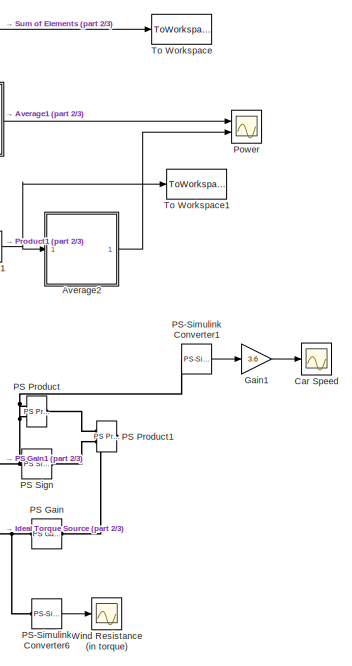
[diagram: root canvas - part 1/3, right side, full height]
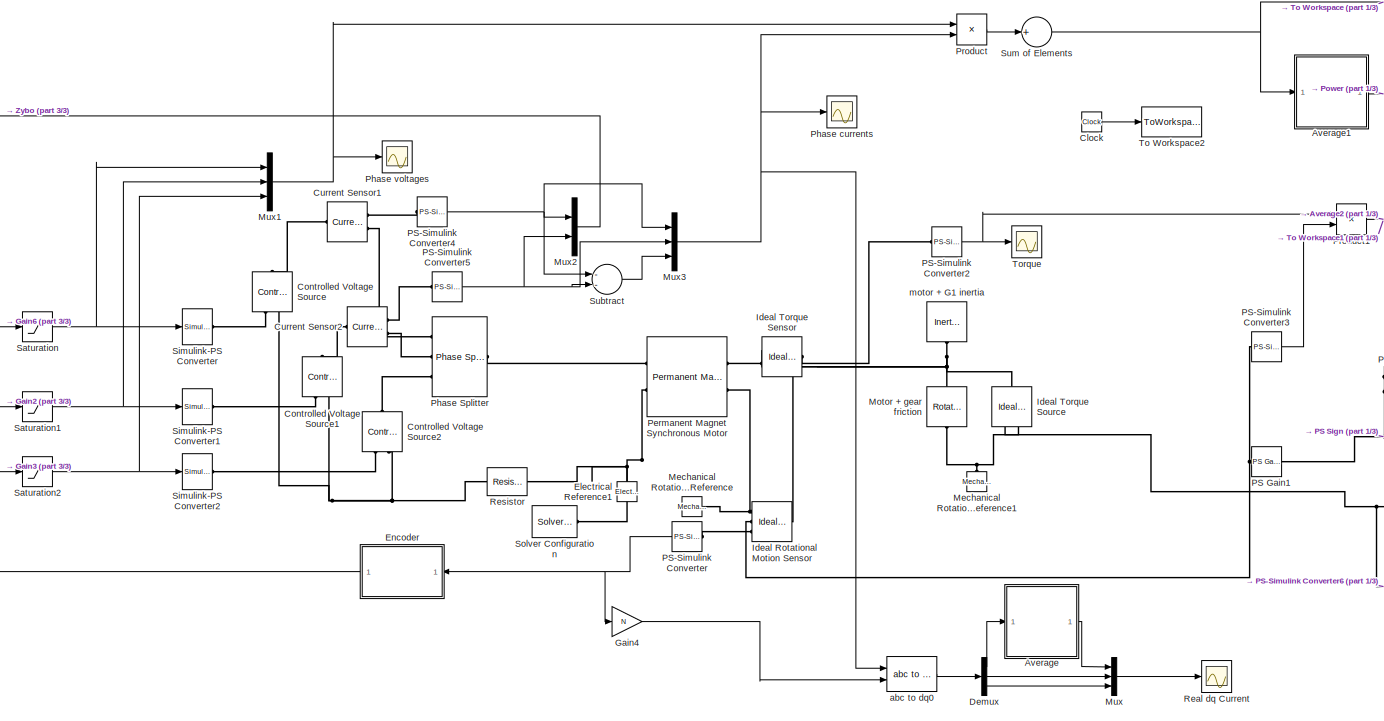
[diagram: root canvas - part 2/3, center side, full height]
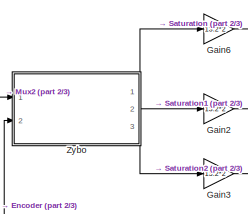
[diagram: root canvas - part 3/3, middle left region]
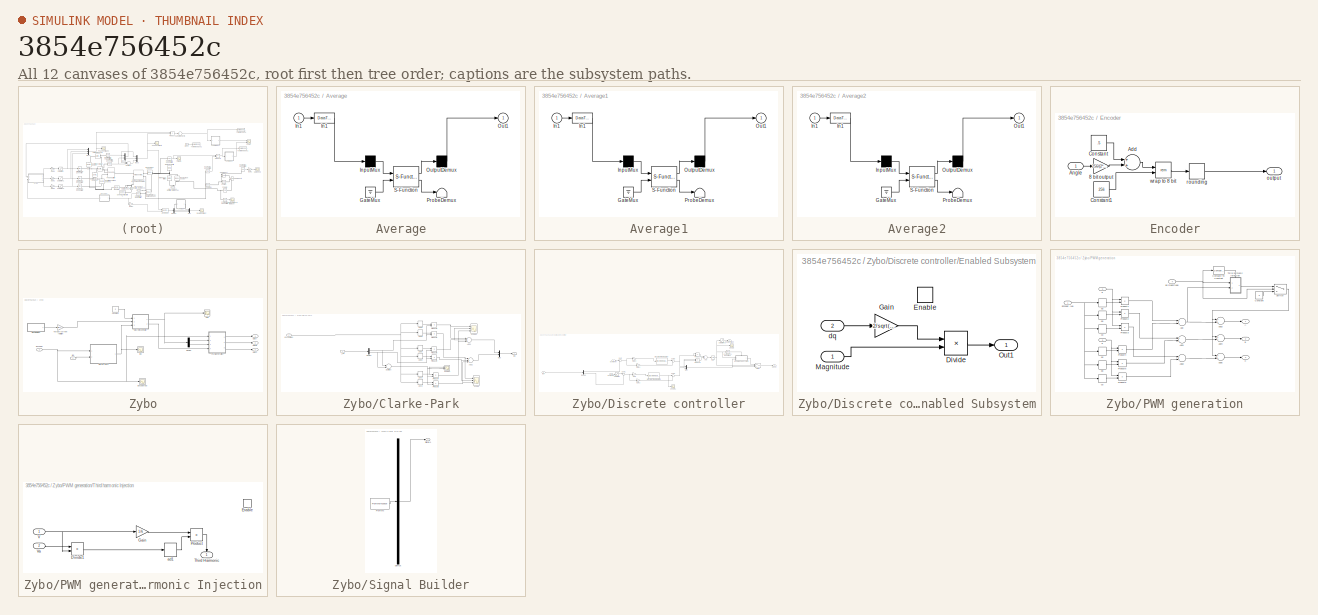
[diagram: thumbnail index - all 12 canvases of the model, root first then tree order]
MODEL slx_3854e756452c
KIND model
CONFIG AbsTol = auto
CONFIG FixedStep = 1
CONFIG MaxStep = auto
CONFIG MinStep = auto
CONFIG RelTol = 1e-2
CONFIG SampleTimeConstraint = Unconstrained
CONFIG Solver = VariableStepAuto
CONFIG SolverMode = Auto
CONFIG SolverName = VariableStepAuto
CONFIG StartTime = 0.0
CONFIG StopTime = 6
BLOCK [SubSystem] Average
  CopyFcn = plecs('sl', 203);
  DeleteFcn = plecs('sl', 205);
  DestroyFcn = plecs('sl', 207);
  ErrorFcn = plerrorfcn
  InitFcn = plecs('sl', 214);
  LoadFcn = plecs('sl', 200);
  NameChangeFcn = plecs('sl', 210);
  OpenFcn = plecs('sl', 202);
  Ports = [1, 1]
  PostSaveFcn = plecs('sl', 201);
  PreCopyFcn = plecs('sl', 216);
  PreSaveFcn = plecs('sl', 211);
  RequestExecContextInheritance = off
  StartFcn = plecs('sl', 208);
  StopFcn = plecs('sl', 209);
  UndoDeleteFcn = plecs('sl', 206);
  Variant = off
BLOCK [Ground] Average/ GateMux 
BLOCK [DataTypeConversion] Average/ In1 
BLOCK [Mux] Average/ InputMux 
  Inputs = [ 1 ]
  Ports = [1, 1]
BLOCK [Demux] Average/ OutputDemux 
  Outputs = [ 1 ]
  Ports = [1, 1]
BLOCK [Terminator] Average/ ProbeDemux 
BLOCK [S-Function] Average/ S-Function 
  EnableBusSupport = off
  FunctionName = plecs
  Ports = [2, 2]
  SFunctionDeploymentMode = off
BLOCK [Inport] Average/In1
  IconDisplay = Port number
  PortDimensions = 1
BLOCK [Outport] Average/Out1
  IconDisplay = Port number
  PortDimensions = 1
BLOCK [SubSystem] Average1
  CopyFcn = plecs('sl', 203);
  DeleteFcn = plecs('sl', 205);
  DestroyFcn = plecs('sl', 207);
  ErrorFcn = plerrorfcn
  InitFcn = plecs('sl', 214);
  LoadFcn = plecs('sl', 200);
  NameChangeFcn = plecs('sl', 210);
  OpenFcn = plecs('sl', 202);
  Ports = [1, 1]
  PostSaveFcn = plecs('sl', 201);
  PreCopyFcn = plecs('sl', 216);
  PreSaveFcn = plecs('sl', 211);
  RequestExecContextInheritance = off
  StartFcn = plecs('sl', 208);
  StopFcn = plecs('sl', 209);
  UndoDeleteFcn = plecs('sl', 206);
  Variant = off
BLOCK [Ground] Average1/ GateMux 
BLOCK [DataTypeConversion] Average1/ In1 
BLOCK [Mux] Average1/ InputMux 
  Inputs = [ 1 ]
  Ports = [1, 1]
BLOCK [Demux] Average1/ OutputDemux 
  Outputs = [ 1 ]
  Ports = [1, 1]
BLOCK [Terminator] Average1/ ProbeDemux 
BLOCK [S-Function] Average1/ S-Function 
  EnableBusSupport = off
  FunctionName = plecs
  Ports = [2, 2]
  SFunctionDeploymentMode = off
BLOCK [Inport] Average1/In1
  IconDisplay = Port number
  PortDimensions = 1
BLOCK [Outport] Average1/Out1
  IconDisplay = Port number
  PortDimensions = 1
BLOCK [SubSystem] Average2
  CopyFcn = plecs('sl', 203);
  DeleteFcn = plecs('sl', 205);
  DestroyFcn = plecs('sl', 207);
  ErrorFcn = plerrorfcn
  InitFcn = plecs('sl', 214);
  LoadFcn = plecs('sl', 200);
  NameChangeFcn = plecs('sl', 210);
  OpenFcn = plecs('sl', 202);
  Ports = [1, 1]
  PostSaveFcn = plecs('sl', 201);
  PreCopyFcn = plecs('sl', 216);
  PreSaveFcn = plecs('sl', 211);
  RequestExecContextInheritance = off
  StartFcn = plecs('sl', 208);
  StopFcn = plecs('sl', 209);
  UndoDeleteFcn = plecs('sl', 206);
  Variant = off
BLOCK [Ground] Average2/ GateMux 
BLOCK [DataTypeConversion] Average2/ In1 
BLOCK [Mux] Average2/ InputMux 
  Inputs = [ 1 ]
  Ports = [1, 1]
BLOCK [Demux] Average2/ OutputDemux 
  Outputs = [ 1 ]
  Ports = [1, 1]
BLOCK [Terminator] Average2/ ProbeDemux 
BLOCK [S-Function] Average2/ S-Function 
  EnableBusSupport = off
  FunctionName = plecs
  Ports = [2, 2]
  SFunctionDeploymentMode = off
BLOCK [Inport] Average2/In1
  IconDisplay = Port number
  PortDimensions = 1
BLOCK [Outport] Average2/Out1
  IconDisplay = Port number
  PortDimensions = 1
BLOCK [Scope] Car Speed
  Ports = [1]
  ScopeSpecificationString = Simulink.scopes.TimeScopeBlockCfg('CurrentConfiguration', extmgr.ConfigurationSet(extmgr.Configuration('Core','General UI',true),extmgr.Configuration('Core','Source UI',true),extmgr.Configuration('Sources','WiredSimulink',true),extmgr.Configuration('Visuals','Time Domain',true,'SerializedDisplays',{struct('MinYLimReal','-6.21447','MaxYLimReal','55.93027','YLabelReal','','MinYLimMag','0.00000','Max...<+1404ch>
BLOCK [Clock] Clock
BLOCK [Reference] Controlled Voltage Source  REF=fl_lib/Electrical/Electrical Sources/Controlled Voltage
Source
  Ports = [0, 0, 0, 0, 0, 1, 2]
  SourceBlock = fl_lib/Electrical/Electrical Sources/Controlled Voltage\nSource
  SourceType = Controlled Voltage\nSource
BLOCK [Reference] Controlled Voltage Source1  REF=fl_lib/Electrical/Electrical Sources/Controlled Voltage
Source
  Ports = [0, 0, 0, 0, 0, 1, 2]
  SourceBlock = fl_lib/Electrical/Electrical Sources/Controlled Voltage\nSource
  SourceType = Controlled Voltage\nSource
BLOCK [Reference] Controlled Voltage Source2  REF=fl_lib/Electrical/Electrical Sources/Controlled Voltage
Source
  Ports = [0, 0, 0, 0, 0, 1, 2]
  SourceBlock = fl_lib/Electrical/Electrical Sources/Controlled Voltage\nSource
  SourceType = Controlled Voltage\nSource
BLOCK [Reference] Current Sensor1  REF=fl_lib/Electrical/Electrical Sensors/Current Sensor
  Ports = [0, 0, 0, 0, 0, 1, 2]
  SourceBlock = fl_lib/Electrical/Electrical Sensors/Current Sensor
  SourceType = Current Sensor
BLOCK [Reference] Current Sensor2  REF=fl_lib/Electrical/Electrical Sensors/Current Sensor
  Ports = [0, 0, 0, 0, 0, 1, 2]
  SourceBlock = fl_lib/Electrical/Electrical Sensors/Current Sensor
  SourceType = Current Sensor
BLOCK [Demux] Demux
  DisplayOption = bar
  Outputs = 3
  Ports = [1, 3]
BLOCK [Reference] Electrical Reference1  REF=fl_lib/Electrical/Electrical Elements/Electrical Reference
  Ports = [0, 0, 0, 0, 0, 1]
  SourceBlock = fl_lib/Electrical/Electrical Elements/Electrical Reference
  SourceType = Electrical Reference
BLOCK [SubSystem] Encoder
  Ports = [1, 1]
  RequestExecContextInheritance = off
  Variant = off
BLOCK [Gain] Encoder/8 bit output
  Gain = 256/(2*pi)
  OutDataTypeStr = Inherit: Inherit via internal rule
  ParamDataTypeStr = Inherit: Inherit via internal rule
  SaturateOnIntegerOverflow = off
BLOCK [Sum] Encoder/Add
  InputSameDT = off
  OutDataTypeStr = Inherit: Inherit via internal rule
  Ports = [2, 1]
  SaturateOnIntegerOverflow = off
BLOCK [Inport] Encoder/Angle
  IconDisplay = Port number
BLOCK [Constant] Encoder/Constant
  Value = .5
BLOCK [Constant] Encoder/Constant1
  Value = 256
BLOCK [Outport] Encoder/output
  IconDisplay = Port number
BLOCK [Rounding] Encoder/rounding
BLOCK [Math] Encoder/wrap to 8 bit
  Operator = rem
  Ports = [2, 1]
BLOCK [Gain] Gain1
  Gain = 3.6
  OutDataTypeStr = Inherit: Inherit via internal rule
  ParamDataTypeStr = Inherit: Inherit via internal rule
  SaturateOnIntegerOverflow = off
BLOCK [Gain] Gain2
  Gain = 13.2*2
  OutDataTypeStr = Inherit: Inherit via internal rule
  ParamDataTypeStr = Inherit: Inherit via internal rule
  SaturateOnIntegerOverflow = off
BLOCK [Gain] Gain3
  Gain = 13.2*2
  OutDataTypeStr = Inherit: Inherit via internal rule
  ParamDataTypeStr = Inherit: Inherit via internal rule
  SaturateOnIntegerOverflow = off
BLOCK [Gain] Gain4
  Gain = N
  OutDataTypeStr = Inherit: Inherit via internal rule
  ParamDataTypeStr = Inherit: Inherit via internal rule
  SaturateOnIntegerOverflow = off
BLOCK [Gain] Gain6
  Gain = 13.2*2
  OutDataTypeStr = Inherit: Inherit via internal rule
  ParamDataTypeStr = Inherit: Inherit via internal rule
  SaturateOnIntegerOverflow = off
BLOCK [Reference] Ideal Rotational Motion Sensor  REF=fl_lib/Mechanical/Mechanical Sensors/Ideal Rotational
Motion Sensor
  Ports = [0, 0, 0, 0, 0, 1, 3]
  SourceBlock = fl_lib/Mechanical/Mechanical Sensors/Ideal Rotational\nMotion Sensor
  SourceType = Ideal Rotational\nMotion Sensor
BLOCK [Reference] Ideal Torque Sensor  REF=fl_lib/Mechanical/Mechanical Sensors/Ideal Torque Sensor
  Ports = [0, 0, 0, 0, 0, 1, 2]
  SourceBlock = fl_lib/Mechanical/Mechanical Sensors/Ideal Torque Sensor
  SourceType = Ideal Torque Sensor
BLOCK [Reference] Ideal Torque Source  REF=fl_lib/Mechanical/Mechanical Sources/Ideal Torque Source
  Ports = [0, 0, 0, 0, 0, 1, 2]
  SourceBlock = fl_lib/Mechanical/Mechanical Sources/Ideal Torque Source
  SourceType = Ideal Torque Source
BLOCK [Reference] Mechanical Rotational Reference  REF=fl_lib/Mechanical/Rotational Elements/Mechanical
Rotational Reference
  Ports = [0, 0, 0, 0, 0, 1]
  SourceBlock = fl_lib/Mechanical/Rotational Elements/Mechanical\nRotational Reference
  SourceType = Mechanical\nRotational Reference
BLOCK [Reference] Mechanical Rotational Reference1  REF=fl_lib/Mechanical/Rotational Elements/Mechanical
Rotational Reference
  Ports = [0, 0, 0, 0, 0, 1]
  SourceBlock = fl_lib/Mechanical/Rotational Elements/Mechanical\nRotational Reference
  SourceType = Mechanical\nRotational Reference
BLOCK [Reference] Motor + gear friction  REF=fl_lib/Mechanical/Rotational Elements/Rotational Friction
  Ports = [0, 0, 0, 0, 0, 1, 1]
  SourceBlock = fl_lib/Mechanical/Rotational Elements/Rotational Friction
  SourceType = Rotational Friction
BLOCK [Mux] Mux
  DisplayOption = bar
  Inputs = 3
  Ports = [3, 1]
BLOCK [Mux] Mux1
  DisplayOption = bar
  Inputs = 3
  Ports = [3, 1]
BLOCK [Mux] Mux2
  DisplayOption = bar
  Inputs = 2
  Ports = [2, 1]
BLOCK [Mux] Mux3
  DisplayOption = bar
  Inputs = 3
  Ports = [3, 1]
BLOCK [Reference] PS Gain  REF=fl_lib/Physical Signals/Functions/PS Gain
  Ports = [0, 0, 0, 0, 0, 1, 1]
  SourceBlock = fl_lib/Physical Signals/Functions/PS Gain
  SourceType = PS Gain
BLOCK [Reference] PS Gain1  REF=fl_lib/Physical Signals/Functions/PS Gain
  Ports = [0, 0, 0, 0, 0, 1, 1]
  SourceBlock = fl_lib/Physical Signals/Functions/PS Gain
  SourceType = PS Gain
BLOCK [Reference] PS Product  REF=fl_lib/Physical Signals/Functions/PS Product
  Ports = [0, 0, 0, 0, 0, 2, 1]
  SourceBlock = fl_lib/Physical Signals/Functions/PS Product
  SourceType = PS Product
BLOCK [Reference] PS Product1  REF=fl_lib/Physical Signals/Functions/PS Product
  Ports = [0, 0, 0, 0, 0, 2, 1]
  SourceBlock = fl_lib/Physical Signals/Functions/PS Product
  SourceType = PS Product
BLOCK [Reference] PS Sign  REF=fl_lib/Physical Signals/Nonlinear Operators/PS Sign
  Ports = [0, 0, 0, 0, 0, 1, 1]
  SourceBlock = fl_lib/Physical Signals/Nonlinear Operators/PS Sign
  SourceType = PS Sign
BLOCK [Reference] PS-Simulink Converter  REF=nesl_utility/PS-Simulink
Converter
  Ports = [0, 1, 0, 0, 0, 1]
  SourceBlock = nesl_utility/PS-Simulink\nConverter
  SourceType = PS-Simulink\nConverter
BLOCK [Reference] PS-Simulink Converter1  REF=nesl_utility/PS-Simulink
Converter
  Ports = [0, 1, 0, 0, 0, 1]
  SourceBlock = nesl_utility/PS-Simulink\nConverter
  SourceType = PS-Simulink\nConverter
BLOCK [Reference] PS-Simulink Converter2  REF=nesl_utility/PS-Simulink
Converter
  Ports = [0, 1, 0, 0, 0, 1]
  SourceBlock = nesl_utility/PS-Simulink\nConverter
  SourceType = PS-Simulink\nConverter
BLOCK [Reference] PS-Simulink Converter3  REF=nesl_utility/PS-Simulink
Converter
  Ports = [0, 1, 0, 0, 0, 1]
  SourceBlock = nesl_utility/PS-Simulink\nConverter
  SourceType = PS-Simulink\nConverter
BLOCK [Reference] PS-Simulink Converter4  REF=nesl_utility/PS-Simulink
Converter
  Ports = [0, 1, 0, 0, 0, 1]
  SourceBlock = nesl_utility/PS-Simulink\nConverter
  SourceType = PS-Simulink\nConverter
BLOCK [Reference] PS-Simulink Converter5  REF=nesl_utility/PS-Simulink
Converter
  Ports = [0, 1, 0, 0, 0, 1]
  SourceBlock = nesl_utility/PS-Simulink\nConverter
  SourceType = PS-Simulink\nConverter
BLOCK [Reference] PS-Simulink Converter6  REF=nesl_utility/PS-Simulink
Converter
  Ports = [0, 1, 0, 0, 0, 1]
  SourceBlock = nesl_utility/PS-Simulink\nConverter
  SourceType = PS-Simulink\nConverter
BLOCK [Reference] Permanent Magnet Synchronous Motor  REF=pe_lib/Machines/Permanent Magnet
Rotor/Permanent Magnet
Synchronous Motor
  Ports = [0, 0, 0, 0, 0, 2, 2]
  SourceBlock = pe_lib/Machines/Permanent Magnet\nRotor/Permanent Magnet\nSynchronous Motor
  SourceType = Permanent Magnet\nSynchronous Motor
BLOCK [Reference] Phase Splitter  REF=pe_lib/Connections/Phase Splitter
  Ports = [0, 0, 0, 0, 0, 1, 3]
  SourceBlock = pe_lib/Connections/Phase Splitter
  SourceType = Phase Splitter
BLOCK [Scope] Phase currents
  Ports = [1]
  ScopeSpecificationString = Simulink.scopes.TimeScopeBlockCfg('CurrentConfiguration', extmgr.ConfigurationSet(extmgr.Configuration('Core','General UI',true),extmgr.Configuration('Core','Source UI',true),extmgr.Configuration('Sources','WiredSimulink',true,'DataLoggingVariableName','ScopeData2'),extmgr.Configuration('Visuals','Time Domain',true,'SerializedDisplays',{struct('MinYLimReal','-327.30292','MaxYLimReal','313.75893','...<+1506ch>
BLOCK [Scope] Phase voltages
  Ports = [1]
  ScopeSpecificationString = Simulink.scopes.TimeScopeBlockCfg('CurrentConfiguration', extmgr.ConfigurationSet(extmgr.Configuration('Core','General UI',true),extmgr.Configuration('Core','Source UI',true),extmgr.Configuration('Sources','WiredSimulink',true,'DataLoggingVariableName','ScopeData1'),extmgr.Configuration('Visuals','Time Domain',true,'SerializedDisplays',{struct('MinYLimReal','-12.34939','MaxYLimReal','12.34144','YL...<+1503ch>
BLOCK [Scope] Power
  NumInputPorts = 2
  Ports = [2]
  ScopeSpecificationString = Simulink.scopes.TimeScopeBlockCfg('CurrentConfiguration', extmgr.ConfigurationSet(extmgr.Configuration('Core','General UI',true),extmgr.Configuration('Core','Source UI',true),extmgr.Configuration('Sources','WiredSimulink',true,'DataLoggingVariableName','ScopeData3'),extmgr.Configuration('Visuals','Time Domain',true,'SerializedDisplays',{struct('MinYLimReal','-1460.1442','MaxYLimReal','12844.61844'...<+1548ch>
BLOCK [Product] Product
  InputSameDT = off
  OutDataTypeStr = Inherit: Inherit via internal rule
  Ports = [2, 1]
  RndMeth = Floor
  SaturateOnIntegerOverflow = off
BLOCK [Product] Product1
  InputSameDT = off
  OutDataTypeStr = Inherit: Inherit via internal rule
  Ports = [2, 1]
  RndMeth = Floor
  SaturateOnIntegerOverflow = off
BLOCK [Scope] Real dq Current
  Ports = [1]
  ScopeSpecificationString = Simulink.scopes.TimeScopeBlockCfg('CurrentConfiguration', extmgr.ConfigurationSet(extmgr.Configuration('Core','General UI',true),extmgr.Configuration('Core','Source UI',true),extmgr.Configuration('Sources','WiredSimulink',true,'DataLoggingVariableName','ScopeData1'),extmgr.Configuration('Visuals','Time Domain',true,'SerializedDisplays',{struct('MinYLimReal','-48.15047','MaxYLimReal','342.67954','Y...<+1471ch>
BLOCK [Reference] Resistor  REF=fl_lib/Electrical/Electrical Elements/Resistor
  Ports = [0, 0, 0, 0, 0, 1, 1]
  SourceBlock = fl_lib/Electrical/Electrical Elements/Resistor
  SourceType = Resistor
BLOCK [Saturate] Saturation
  InputPortMap = u0
  LowerLimit = -13.2*2
  Ports = [1, 1]
  UpperLimit = 13.2*2
BLOCK [Saturate] Saturation1
  InputPortMap = u0
  LowerLimit = -13.2*2
  Ports = [1, 1]
  UpperLimit = 13.2*2
BLOCK [Saturate] Saturation2
  InputPortMap = u0
  LowerLimit = -13.2*2
  Ports = [1, 1]
  UpperLimit = 13.2*2
BLOCK [Reference] Simulink-PS Converter  REF=nesl_utility/Simulink-PS
Converter
  Ports = [1, 0, 0, 0, 0, 0, 1]
  SourceBlock = nesl_utility/Simulink-PS\nConverter
  SourceType = Simulink-PS\nConverter
BLOCK [Reference] Simulink-PS Converter1  REF=nesl_utility/Simulink-PS
Converter
  Ports = [1, 0, 0, 0, 0, 0, 1]
  SourceBlock = nesl_utility/Simulink-PS\nConverter
  SourceType = Simulink-PS\nConverter
BLOCK [Reference] Simulink-PS Converter2  REF=nesl_utility/Simulink-PS
Converter
  Ports = [1, 0, 0, 0, 0, 0, 1]
  SourceBlock = nesl_utility/Simulink-PS\nConverter
  SourceType = Simulink-PS\nConverter
BLOCK [Reference] Solver Configuration  REF=nesl_utility/Solver
Configuration
  Ports = [0, 0, 0, 0, 0, 0, 1]
  SourceBlock = nesl_utility/Solver\nConfiguration
  SourceType = Solver\nConfiguration
BLOCK [Sum] Subtract
  InputSameDT = off
  Inputs = --
  OutDataTypeStr = Inherit: Inherit via internal rule
  Ports = [2, 1]
  SaturateOnIntegerOverflow = off
BLOCK [Sum] Sum of Elements
  InputSameDT = off
  Inputs = +
  OutDataTypeStr = Inherit: Inherit via internal rule
  Ports = [1, 1]
  SaturateOnIntegerOverflow = off
BLOCK [ToWorkspace] To Workspace
  FixptAsFi = on
  MaxDataPoints = inf
  Ports = [1]
  SampleTime = -1
  Save2DSignal = 2-D array (concatenate along first dimension)
  VariableName = compensated_power_e
BLOCK [ToWorkspace] To Workspace1
  FixptAsFi = on
  MaxDataPoints = inf
  Ports = [1]
  SampleTime = -1
  Save2DSignal = 2-D array (concatenate along first dimension)
  VariableName = compensated_power_m
BLOCK [ToWorkspace] To Workspace2
  FixptAsFi = on
  MaxDataPoints = inf
  Ports = [1]
  SampleTime = -1
  Save2DSignal = 2-D array (concatenate along first dimension)
  VariableName = compensated_time
BLOCK [Scope] Torque
  Ports = [1]
  ScopeSpecificationString = Simulink.scopes.TimeScopeBlockCfg('CurrentConfiguration', extmgr.ConfigurationSet(extmgr.Configuration('Core','General UI',true),extmgr.Configuration('Core','Source UI',true),extmgr.Configuration('Sources','WiredSimulink',true,'DataLoggingVariableName','ScopeData4'),extmgr.Configuration('Visuals','Time Domain',true,'SerializedDisplays',{struct('MinYLimReal','-4.30118','MaxYLimReal','37.5571','YLab...<+1496ch>
BLOCK [Scope] Wind Resistance (in torque)
  Ports = [1]
  ScopeSpecificationString = Simulink.scopes.TimeScopeBlockCfg('CurrentConfiguration', extmgr.ConfigurationSet(extmgr.Configuration('Core','General UI',true),extmgr.Configuration('Core','Source UI',true),extmgr.Configuration('Sources','WiredSimulink',true,'DataLoggingVariableName','ScopeData4'),extmgr.Configuration('Visuals','Time Domain',true,'SerializedDisplays',{struct('MinYLimReal','-2.98683','MaxYLimReal','0.33187','YLab...<+1502ch>
BLOCK [SubSystem] Zybo
  Ports = [2, 3]
  RequestExecContextInheritance = off
  Variant = off
BLOCK [SubSystem] Zybo/Clarke-Park
  Ports = [2, 1]
  RequestExecContextInheritance = off
  SystemSampleTime = T
  Variant = off
BLOCK [Lookup_n-D] Zybo/Clarke-Park/2//3ad
  BreakpointsForDimension1 = n1
  InternalRulePriority = Speed
  InterpMethod = Nearest
  NumberOfTableDimensions = 1
  Ports = [1, 1]
  RndMeth = Simplest
  Table = ad*2/3
BLOCK [Lookup_n-D] Zybo/Clarke-Park/2//3aq
  BreakpointsForDimension1 = n1
  InternalRulePriority = Speed
  InterpMethod = Nearest
  NumberOfTableDimensions = 1
  Ports = [1, 1]
  RndMeth = Simplest
  Table = aq*2/3
BLOCK [Lookup_n-D] Zybo/Clarke-Park/2//3bd
  BreakpointsForDimension1 = n1
  InternalRulePriority = Speed
  InterpMethod = Nearest
  NumberOfTableDimensions = 1
  Ports = [1, 1]
  RndMeth = Simplest
  Table = bd*2/3
BLOCK [Lookup_n-D] Zybo/Clarke-Park/2//3bq
  BreakpointsForDimension1 = n1
  InternalRulePriority = Speed
  InterpMethod = Nearest
  NumberOfTableDimensions = 1
  Ports = [1, 1]
  RndMeth = Simplest
  Table = bq*2/3
BLOCK [Lookup_n-D] Zybo/Clarke-Park/2//3cd
  BreakpointsForDimension1 = n1
  InternalRulePriority = Speed
  InterpMethod = Nearest
  NumberOfTableDimensions = 1
  Ports = [1, 1]
  RndMeth = Simplest
  Table = cd*2/3
BLOCK [Lookup_n-D] Zybo/Clarke-Park/2//3cq
  BreakpointsForDimension1 = n1
  InternalRulePriority = Speed
  InterpMethod = Nearest
  NumberOfTableDimensions = 1
  Ports = [1, 1]
  RndMeth = Simplest
  Table = cq*2/3
BLOCK [Sum] Zybo/Clarke-Park/Add1
  InputSameDT = off
  Inputs = +++
  OutDataTypeStr = Inherit: Inherit via internal rule
  Ports = [3, 1]
  SaturateOnIntegerOverflow = off
BLOCK [Sum] Zybo/Clarke-Park/Add2
  InputSameDT = off
  Inputs = +++
  OutDataTypeStr = Inherit: Inherit via internal rule
  Ports = [3, 1]
  SaturateOnIntegerOverflow = off
BLOCK [Demux] Zybo/Clarke-Park/Demux
  DisplayOption = bar
  Outputs = 2
  Ports = [1, 2]
BLOCK [Inport] Zybo/Clarke-Park/I_ab
  IconDisplay = Port number
  Port = 2
BLOCK [Outport] Zybo/Clarke-Park/Idq
  IconDisplay = Port number
BLOCK [Mux] Zybo/Clarke-Park/Mux
  DisplayOption = bar
  Inputs = 2
  Ports = [2, 1]
BLOCK [Product] Zybo/Clarke-Park/Product2
  InputSameDT = off
  OutDataTypeStr = Inherit: Inherit via internal rule
  Ports = [2, 1]
  RndMeth = Floor
  SaturateOnIntegerOverflow = off
BLOCK [Product] Zybo/Clarke-Park/Product3
  InputSameDT = off
  OutDataTypeStr = Inherit: Inherit via internal rule
  Ports = [2, 1]
  RndMeth = Floor
  SaturateOnIntegerOverflow = off
BLOCK [Product] Zybo/Clarke-Park/Product4
  InputSameDT = off
  OutDataTypeStr = Inherit: Inherit via internal rule
  Ports = [2, 1]
  RndMeth = Floor
  SaturateOnIntegerOverflow = off
BLOCK [Product] Zybo/Clarke-Park/Product5
  InputSameDT = off
  OutDataTypeStr = Inherit: Inherit via internal rule
  Ports = [2, 1]
  RndMeth = Floor
  SaturateOnIntegerOverflow = off
BLOCK [Product] Zybo/Clarke-Park/Product6
  InputSameDT = off
  OutDataTypeStr = Inherit: Inherit via internal rule
  Ports = [2, 1]
  RndMeth = Floor
  SaturateOnIntegerOverflow = off
BLOCK [Product] Zybo/Clarke-Park/Product7
  InputSameDT = off
  OutDataTypeStr = Inherit: Inherit via internal rule
  Ports = [2, 1]
  RndMeth = Floor
  SaturateOnIntegerOverflow = off
BLOCK [Scope] Zybo/Clarke-Park/Scope
  NumInputPorts = 3
  Ports = [3]
  ScopeSpecificationString = Simulink.scopes.TimeScopeBlockCfg('CurrentConfiguration', extmgr.ConfigurationSet(extmgr.Configuration('Core','General UI',true),extmgr.Configuration('Core','Source UI',true),extmgr.Configuration('Sources','WiredSimulink',true,'DataLoggingVariableName','ScopeData3','DataLoggingSaveFormat','Array','DataLoggingDecimation','1'),extmgr.Configuration('Visuals','Time Domain',true,'SerializedDisplays',{s...<+1890ch>
BLOCK [Scope] Zybo/Clarke-Park/Scope1
  NumInputPorts = 2
  Ports = [2]
  ScopeSpecificationString = Simulink.scopes.TimeScopeBlockCfg('CurrentConfiguration', extmgr.ConfigurationSet(extmgr.Configuration('Core','General UI',true),extmgr.Configuration('Core','Source UI',true),extmgr.Configuration('Sources','WiredSimulink',true,'DataLoggingVariableName','ScopeData1'),extmgr.Configuration('Visuals','Time Domain',true,'SerializedDisplays',{struct('MinYLimReal','-0.75291','MaxYLimReal','0.72171','YLab...<+2066ch>
BLOCK [Scope] Zybo/Clarke-Park/Scope2
  NumInputPorts = 3
  Ports = [3]
  ScopeSpecificationString = Simulink.scopes.TimeScopeBlockCfg('CurrentConfiguration', extmgr.ConfigurationSet(extmgr.Configuration('Core','General UI',true),extmgr.Configuration('Core','Source UI',true),extmgr.Configuration('Sources','WiredSimulink',true,'DataLoggingVariableName','ScopeData4','DataLoggingSaveFormat','Array','DataLoggingDecimation','1','DataLoggingDecimateData',true),extmgr.Configuration('Visuals','Time Domai...<+1601ch>
BLOCK [Sum] Zybo/Clarke-Park/Subtract
  InputSameDT = off
  Inputs = --
  OutDataTypeStr = Inherit: Inherit via internal rule
  Ports = [2, 1]
  SaturateOnIntegerOverflow = off
BLOCK [Inport] Zybo/Clarke-Park/encoder(u8)
  IconDisplay = Port number
BLOCK [Constant] Zybo/Constant
  Value = 0
BLOCK [Demux] Zybo/Demux
  DisplayOption = bar
  Outputs = 2
  Ports = [1, 2]
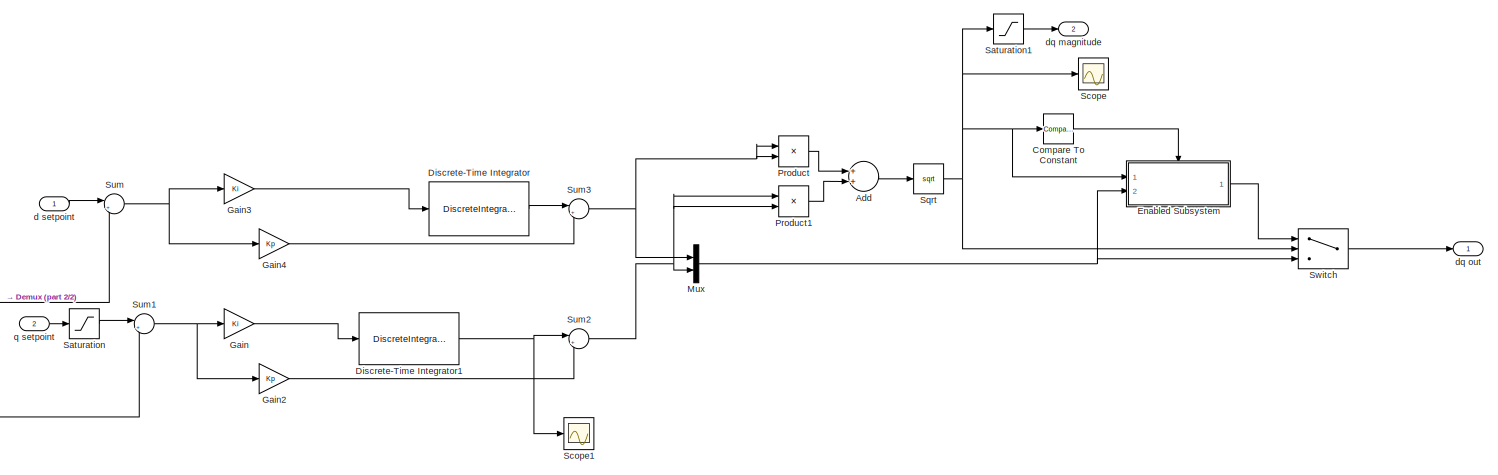
[diagram: Zybo/Discrete controller - part 1/2, center side, full height]
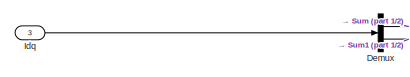
[diagram: Zybo/Discrete controller - part 2/2, middle left region]
BLOCK [SubSystem] Zybo/Discrete controller
  PermitHierarchicalResolution = ExplicitOnly
  Ports = [3, 2]
  RequestExecContextInheritance = off
  SystemSampleTime = T
  TreatAsAtomicUnit = on
  Variant = off
BLOCK [Sum] Zybo/Discrete controller/Add
  InputSameDT = off
  OutDataTypeStr = Inherit: Inherit via internal rule
  Ports = [2, 1]
  SaturateOnIntegerOverflow = off
BLOCK [Reference] Zybo/Discrete controller/Compare To Constant  REF=simulink/Logic and Bit
Operations/Compare
To Constant
  Ports = [1, 1]
  SourceBlock = simulink/Logic and Bit\nOperations/Compare\nTo Constant
  SourceType = Compare To Constant
BLOCK [Demux] Zybo/Discrete controller/Demux
  DisplayOption = bar
  Outputs = 2
  Ports = [1, 2]
BLOCK [DiscreteIntegrator] Zybo/Discrete controller/Discrete-Time Integrator
  ICPrevOutput = DiscIntNeverNeededParam
  ICPrevScaledInput = DiscIntNeverNeededParam
  InitialConditionSetting = State (most efficient)
  IntegratorMethod = Integration: Trapezoidal
  LimitOutput = on
  LowerSaturationLimit = -2/sqrt(3)
  Ports = [1, 1]
  SampleTime = T
  UpperSaturationLimit = 2/sqrt(3)
BLOCK [DiscreteIntegrator] Zybo/Discrete controller/Discrete-Time Integrator1
  ICPrevOutput = DiscIntNeverNeededParam
  ICPrevScaledInput = DiscIntNeverNeededParam
  InitialConditionSetting = State (most efficient)
  IntegratorMethod = Integration: Trapezoidal
  LimitOutput = on
  LowerSaturationLimit = -2/sqrt(3)
  Ports = [1, 1]
  SampleTime = T
  UpperSaturationLimit = 2/sqrt(3)
BLOCK [SubSystem] Zybo/Discrete controller/Enabled Subsystem
  Ports = [2, 1, 1]
  RequestExecContextInheritance = off
  TreatAsAtomicUnit = on
  Variant = off
BLOCK [Product] Zybo/Discrete controller/Enabled Subsystem/Divide
  InputSameDT = off
  Inputs = */
  OutDataTypeStr = Inherit: Inherit via internal rule
  Ports = [2, 1]
  RndMeth = Floor
  SaturateOnIntegerOverflow = off
BLOCK [EnablePort] Zybo/Discrete controller/Enabled Subsystem/Enable
  Ports = []
BLOCK [Gain] Zybo/Discrete controller/Enabled Subsystem/Gain
  Gain = 2/sqrt(3)
  OutDataTypeStr = Inherit: Inherit via internal rule
  ParamDataTypeStr = Inherit: Inherit via internal rule
  SaturateOnIntegerOverflow = off
BLOCK [Inport] Zybo/Discrete controller/Enabled Subsystem/Magnitude
  IconDisplay = Port number
BLOCK [Outport] Zybo/Discrete controller/Enabled Subsystem/Out1
  IconDisplay = Port number
BLOCK [Inport] Zybo/Discrete controller/Enabled Subsystem/dq
  IconDisplay = Port number
  Port = 2
BLOCK [Gain] Zybo/Discrete controller/Gain
  Gain = Ki
  OutDataTypeStr = Inherit: Inherit via internal rule
  ParamDataTypeStr = Inherit: Inherit via internal rule
  SaturateOnIntegerOverflow = off
BLOCK [Gain] Zybo/Discrete controller/Gain2
  Gain = Kp
  OutDataTypeStr = Inherit: Inherit via internal rule
  ParamDataTypeStr = Inherit: Inherit via internal rule
  SaturateOnIntegerOverflow = off
BLOCK [Gain] Zybo/Discrete controller/Gain3
  Gain = Ki
  OutDataTypeStr = Inherit: Inherit via internal rule
  ParamDataTypeStr = Inherit: Inherit via internal rule
  SaturateOnIntegerOverflow = off
BLOCK [Gain] Zybo/Discrete controller/Gain4
  Gain = Kp
  OutDataTypeStr = Inherit: Inherit via internal rule
  ParamDataTypeStr = Inherit: Inherit via internal rule
  SaturateOnIntegerOverflow = off
BLOCK [Inport] Zybo/Discrete controller/Idq
  IconDisplay = Port number
  Port = 3
BLOCK [Mux] Zybo/Discrete controller/Mux
  DisplayOption = bar
  Inputs = 2
  Ports = [2, 1]
BLOCK [Product] Zybo/Discrete controller/Product
  InputSameDT = off
  OutDataTypeStr = Inherit: Inherit via internal rule
  Ports = [2, 1]
  RndMeth = Floor
  SaturateOnIntegerOverflow = off
BLOCK [Product] Zybo/Discrete controller/Product1
  InputSameDT = off
  OutDataTypeStr = Inherit: Inherit via internal rule
  Ports = [2, 1]
  RndMeth = Floor
  SaturateOnIntegerOverflow = off
BLOCK [Saturate] Zybo/Discrete controller/Saturation
  InputPortMap = u0
  Ports = [1, 1]
  UpperLimit = 300
BLOCK [Saturate] Zybo/Discrete controller/Saturation1
  InputPortMap = u0
  Ports = [1, 1]
  UpperLimit = 2/sqrt(3)
BLOCK [Scope] Zybo/Discrete controller/Scope
  Ports = [1]
  ScopeSpecificationString = Simulink.scopes.TimeScopeBlockCfg('CurrentConfiguration', extmgr.ConfigurationSet(extmgr.Configuration('Core','General UI',true),extmgr.Configuration('Core','Source UI',true),extmgr.Configuration('Sources','WiredSimulink',true,'DataLoggingVariableName','ScopeData1'),extmgr.Configuration('Visuals','Time Domain',true,'SerializedDisplays',{struct('MinYLimReal','-0.53285','MaxYLimReal','4.79561','YLab...<+1435ch>
BLOCK [Scope] Zybo/Discrete controller/Scope1
  Ports = [1]
  ScopeSpecificationString = Simulink.scopes.TimeScopeBlockCfg('CurrentConfiguration', extmgr.ConfigurationSet(extmgr.Configuration('Core','General UI',true),extmgr.Configuration('Core','Source UI',true),extmgr.Configuration('Sources','WiredSimulink',true,'DataLoggingVariableName','ScopeData2'),extmgr.Configuration('Visuals','Time Domain',true,'SerializedDisplays',{struct('MinYLimReal','-0.14434','MaxYLimReal','1.29904','YLab...<+1459ch>
BLOCK [Sqrt] Zybo/Discrete controller/Sqrt
BLOCK [Sum] Zybo/Discrete controller/Sum
  IconShape = round
  InputSameDT = off
  Inputs = |+-
  OutDataTypeStr = Inherit: Inherit via internal rule
  Ports = [2, 1]
  SaturateOnIntegerOverflow = off
BLOCK [Sum] Zybo/Discrete controller/Sum1
  IconShape = round
  InputSameDT = off
  Inputs = |+-
  OutDataTypeStr = Inherit: Inherit via internal rule
  Ports = [2, 1]
  SaturateOnIntegerOverflow = off
BLOCK [Sum] Zybo/Discrete controller/Sum2
  IconShape = round
  InputSameDT = off
  Inputs = |++
  OutDataTypeStr = Inherit: Inherit via internal rule
  Ports = [2, 1]
  SaturateOnIntegerOverflow = off
BLOCK [Sum] Zybo/Discrete controller/Sum3
  IconShape = round
  InputSameDT = off
  Inputs = |++
  OutDataTypeStr = Inherit: Inherit via internal rule
  Ports = [2, 1]
  SaturateOnIntegerOverflow = off
BLOCK [Switch] Zybo/Discrete controller/Switch
  Criteria = u2 > Threshold
  InputSameDT = off
  SaturateOnIntegerOverflow = off
  Threshold = 2/sqrt(3)
BLOCK [Inport] Zybo/Discrete controller/d setpoint
  IconDisplay = Port number
BLOCK [Outport] Zybo/Discrete controller/dq magnitude
  IconDisplay = Port number
  Port = 2
BLOCK [Outport] Zybo/Discrete controller/dq out
  IconDisplay = Port number
BLOCK [Inport] Zybo/Discrete controller/q setpoint
  IconDisplay = Port number
  Port = 2
BLOCK [Outport] Zybo/Duty A
  IconDisplay = Port number
BLOCK [Outport] Zybo/Duty B
  IconDisplay = Port number
  Port = 2
BLOCK [Outport] Zybo/Duty C
  IconDisplay = Port number
  Port = 3
BLOCK [Inport] Zybo/Encoder
  IconDisplay = Port number
  Port = 2
BLOCK [Scope] Zybo/Encoder out
  Ports = [1]
  ScopeSpecificationString = Simulink.scopes.TimeScopeBlockCfg('CurrentConfiguration', extmgr.ConfigurationSet(extmgr.Configuration('Core','General UI',true),extmgr.Configuration('Core','Source UI',true),extmgr.Configuration('Sources','WiredSimulink',true,'DataLoggingVariableName','ScopeData1'),extmgr.Configuration('Visuals','Time Domain',true,'SerializedDisplays',{struct('MinYLimReal','-32.00000','MaxYLimReal','288.00000','Y...<+1479ch>
BLOCK [Inport] Zybo/Iab
  IconDisplay = Port number
BLOCK [Scope] Zybo/Idq
  Ports = [1]
  ScopeSpecificationString = Simulink.scopes.TimeScopeBlockCfg('CurrentConfiguration', extmgr.ConfigurationSet(extmgr.Configuration('Core','General UI',true),extmgr.Configuration('Core','Source UI',true),extmgr.Configuration('Sources','WiredSimulink',true,'DataLoggingVariableName','ScopeData1'),extmgr.Configuration('Visuals','Time Domain',true,'SerializedDisplays',{struct('MinYLimReal','-93.65803','MaxYLimReal','351.26576','Y...<+1501ch>
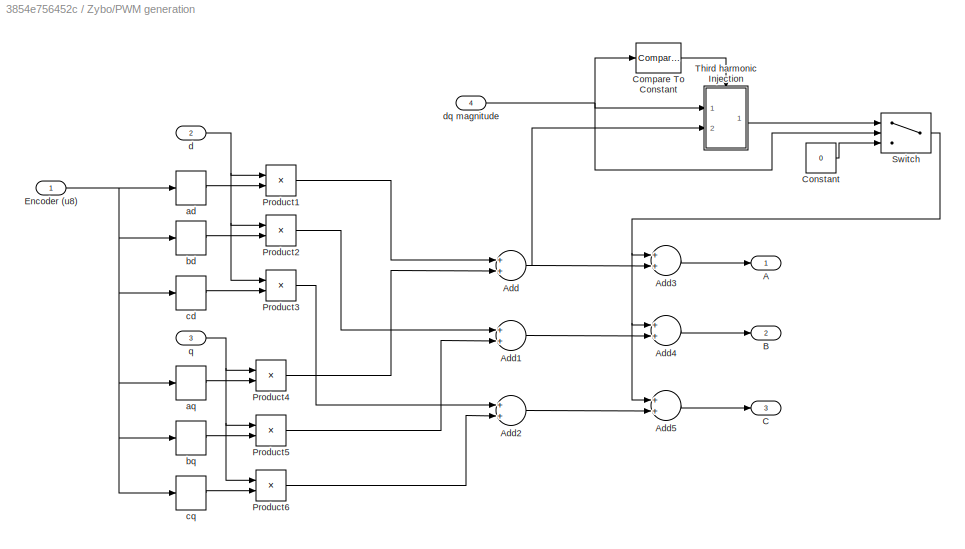
BLOCK [SubSystem] Zybo/PWM generation
  Ports = [4, 3]
  RequestExecContextInheritance = off
  Variant = off
BLOCK [Outport] Zybo/PWM generation/A
  IconDisplay = Port number
BLOCK [Sum] Zybo/PWM generation/Add
  InputSameDT = off
  OutDataTypeStr = Inherit: Inherit via internal rule
  Ports = [2, 1]
  SaturateOnIntegerOverflow = off
BLOCK [Sum] Zybo/PWM generation/Add1
  InputSameDT = off
  OutDataTypeStr = Inherit: Inherit via internal rule
  Ports = [2, 1]
  SaturateOnIntegerOverflow = off
BLOCK [Sum] Zybo/PWM generation/Add2
  InputSameDT = off
  OutDataTypeStr = Inherit: Inherit via internal rule
  Ports = [2, 1]
  SaturateOnIntegerOverflow = off
BLOCK [Sum] Zybo/PWM generation/Add3
  InputSameDT = off
  OutDataTypeStr = Inherit: Inherit via internal rule
  Ports = [2, 1]
  SaturateOnIntegerOverflow = off
BLOCK [Sum] Zybo/PWM generation/Add4
  InputSameDT = off
  OutDataTypeStr = Inherit: Inherit via internal rule
  Ports = [2, 1]
  SaturateOnIntegerOverflow = off
BLOCK [Sum] Zybo/PWM generation/Add5
  InputSameDT = off
  OutDataTypeStr = Inherit: Inherit via internal rule
  Ports = [2, 1]
  SaturateOnIntegerOverflow = off
BLOCK [Outport] Zybo/PWM generation/B
  IconDisplay = Port number
  Port = 2
BLOCK [Outport] Zybo/PWM generation/C
  IconDisplay = Port number
  Port = 3
BLOCK [Reference] Zybo/PWM generation/Compare To Constant  REF=simulink/Logic and Bit
Operations/Compare
To Constant
  Ports = [1, 1]
  SourceBlock = simulink/Logic and Bit\nOperations/Compare\nTo Constant
  SourceType = Compare To Constant
BLOCK [Constant] Zybo/PWM generation/Constant
  Value = 0
BLOCK [Inport] Zybo/PWM generation/Encoder (u8)
  IconDisplay = Port number
BLOCK [Product] Zybo/PWM generation/Product1
  InputSameDT = off
  OutDataTypeStr = Inherit: Inherit via internal rule
  Ports = [2, 1]
  RndMeth = Floor
  SaturateOnIntegerOverflow = off
BLOCK [Product] Zybo/PWM generation/Product2
  InputSameDT = off
  OutDataTypeStr = Inherit: Inherit via internal rule
  Ports = [2, 1]
  RndMeth = Floor
  SaturateOnIntegerOverflow = off
BLOCK [Product] Zybo/PWM generation/Product3
  InputSameDT = off
  OutDataTypeStr = Inherit: Inherit via internal rule
  Ports = [2, 1]
  RndMeth = Floor
  SaturateOnIntegerOverflow = off
BLOCK [Product] Zybo/PWM generation/Product4
  InputSameDT = off
  OutDataTypeStr = Inherit: Inherit via internal rule
  Ports = [2, 1]
  RndMeth = Floor
  SaturateOnIntegerOverflow = off
BLOCK [Product] Zybo/PWM generation/Product5
  InputSameDT = off
  OutDataTypeStr = Inherit: Inherit via internal rule
  Ports = [2, 1]
  RndMeth = Floor
  SaturateOnIntegerOverflow = off
BLOCK [Product] Zybo/PWM generation/Product6
  InputSameDT = off
  OutDataTypeStr = Inherit: Inherit via internal rule
  Ports = [2, 1]
  RndMeth = Floor
  SaturateOnIntegerOverflow = off
BLOCK [Switch] Zybo/PWM generation/Switch
  Criteria = u2 > Threshold
  InputSameDT = off
  SaturateOnIntegerOverflow = off
  Threshold = 0.01
BLOCK [SubSystem] Zybo/PWM generation/Third harmonic Injection
  Ports = [2, 1, 1]
  RequestExecContextInheritance = off
  Variant = off
BLOCK [Product] Zybo/PWM generation/Third harmonic Injection/Divide1
  InputSameDT = off
  Inputs = */
  OutDataTypeStr = Inherit: Inherit via internal rule
  Ports = [2, 1]
  RndMeth = Floor
  SaturateOnIntegerOverflow = off
BLOCK [EnablePort] Zybo/PWM generation/Third harmonic Injection/Enable
  Ports = []
BLOCK [Gain] Zybo/PWM generation/Third harmonic Injection/Gain
  Gain = 1/6
  OutDataTypeStr = Inherit: Inherit via internal rule
  ParamDataTypeStr = Inherit: Inherit via internal rule
  SaturateOnIntegerOverflow = off
BLOCK [Product] Zybo/PWM generation/Third harmonic Injection/Product
  InputSameDT = off
  OutDataTypeStr = Inherit: Inherit via internal rule
  Ports = [2, 1]
  RndMeth = Floor
  SaturateOnIntegerOverflow = off
BLOCK [Outport] Zybo/PWM generation/Third harmonic Injection/Third Harmonic
  IconDisplay = Port number
BLOCK [Inport] Zybo/PWM generation/Third harmonic Injection/V
  IconDisplay = Port number
BLOCK [Inport] Zybo/PWM generation/Third harmonic Injection/Va
  IconDisplay = Port number
  Port = 2
BLOCK [Lookup_n-D] Zybo/PWM generation/Third harmonic Injection/ad1
  BreakpointsForDimension1 = n2
  InternalRulePriority = Speed
  InterpMethod = Nearest
  NumberOfTableDimensions = 1
  Ports = [1, 1]
  RndMeth = Simplest
  Table = third_phase
BLOCK [Lookup_n-D] Zybo/PWM generation/ad
  BreakpointsForDimension1 = n1
  IndexSearchMethod = Linear search
  InternalRulePriority = Speed
  InterpMethod = Nearest
  NumberOfTableDimensions = 1
  Ports = [1, 1]
  RndMeth = Simplest
  Table = ad
BLOCK [Lookup_n-D] Zybo/PWM generation/aq
  BreakpointsForDimension1 = n1
  InternalRulePriority = Speed
  InterpMethod = Nearest
  NumberOfTableDimensions = 1
  Ports = [1, 1]
  RndMeth = Simplest
  Table = aq
BLOCK [Lookup_n-D] Zybo/PWM generation/bd
  BreakpointsForDimension1 = n1
  InternalRulePriority = Speed
  InterpMethod = Nearest
  NumberOfTableDimensions = 1
  Ports = [1, 1]
  RndMeth = Simplest
  Table = bd
BLOCK [Lookup_n-D] Zybo/PWM generation/bq
  BreakpointsForDimension1 = n1
  InternalRulePriority = Speed
  InterpMethod = Nearest
  NumberOfTableDimensions = 1
  Ports = [1, 1]
  RndMeth = Simplest
  Table = bq
BLOCK [Lookup_n-D] Zybo/PWM generation/cd
  BreakpointsForDimension1 = n1
  InternalRulePriority = Speed
  InterpMethod = Nearest
  NumberOfTableDimensions = 1
  Ports = [1, 1]
  RndMeth = Simplest
  Table = cd
BLOCK [Lookup_n-D] Zybo/PWM generation/cq
  BreakpointsForDimension1 = n1
  InternalRulePriority = Speed
  InterpMethod = Nearest
  NumberOfTableDimensions = 1
  Ports = [1, 1]
  RndMeth = Simplest
  Table = cq
BLOCK [Inport] Zybo/PWM generation/d
  IconDisplay = Port number
  Port = 2
BLOCK [Inport] Zybo/PWM generation/dq magnitude
  IconDisplay = Port number
  Port = 4
BLOCK [Inport] Zybo/PWM generation/q
  IconDisplay = Port number
  Port = 3
BLOCK [SubSystem] Zybo/Signal Builder
  ClipboardFcn = sigbuilder_block('clipboard');
  CloseFcn = sigbuilder_block('close');
  ContinueFcn = sigbuilder_block('continue');
  CopyFcn = sigbuilder_block('copy');
  DeleteFcn = sigbuilder_block('delete');
  LoadFcn = sigbuilder_block('load');
  MaskHideContents = on
  ModelCloseFcn = sigbuilder_block('modelClose');
  NameChangeFcn = sigbuilder_block('namechange');
  OpenFcn = sigbuilder_block('open',[298.8 170.4 550.8 400.2 ]);
  PauseFcn = sigbuilder_block('pause');
  Ports = [0, 1]
  PreSaveFcn = sigbuilder_block('preSave');
  RequestExecContextInheritance = off
  StartFcn = sigbuilder_block('start');
  StopFcn = sigbuilder_block('stop');
  Tag = STV Subsys
  Variant = off
BLOCK [Demux] Zybo/Signal Builder/Demux
  Outputs = 1
  Ports = [1, 1]
  Tag = STV Demux
BLOCK [FromWorkspace] Zybo/Signal Builder/FromWs
  SampleTime = 0
  Tag = STV FromWs
  VariableName = tuvar
  ZeroCross = on
BLOCK [Outport] Zybo/Signal Builder/Signal 1
  IconDisplay = Port number
  Tag = STV Outport
BLOCK [Gain] Zybo/Torque-current relation
  Gain = 1/(Kt*1.5)
  OutDataTypeStr = Inherit: Inherit via internal rule
  ParamDataTypeStr = Inherit: Inherit via internal rule
  SaturateOnIntegerOverflow = off
BLOCK [Scope] Zybo/Vdq
  Ports = [1]
  ScopeSpecificationString = Simulink.scopes.TimeScopeBlockCfg('CurrentConfiguration', extmgr.ConfigurationSet(extmgr.Configuration('Core','General UI',true),extmgr.Configuration('Core','Source UI',true),extmgr.Configuration('Sources','WiredSimulink',true,'DataLoggingVariableName','ScopeData2'),extmgr.Configuration('Visuals','Time Domain',true,'SerializedDisplays',{struct('MinYLimReal','-1.04765','MaxYLimReal','1.39334','YLab...<+1484ch>
BLOCK [Reference] abc to dq0  REF=powerlib_meascontrol/Transformations/abc to dq0
  Ports = [2, 1]
  SourceBlock = powerlib_meascontrol/Transformations/abc to dq0
  SourceType = abc to dq0 Transformation
BLOCK [Reference] motor + G1 inertia  REF=fl_lib/Mechanical/Rotational Elements/Inertia
  Ports = [0, 0, 0, 0, 0, 1]
  SourceBlock = fl_lib/Mechanical/Rotational Elements/Inertia
  SourceType = Inertia
LINE Average1:1 -> Power:1
LINE Average2:1 -> Power:2
LINE Average:1 -> Mux:1
LINE Clock:1 -> To Workspace2:1
LINE Demux:1 -> Average:1
LINE Demux:2 -> Mux:2
LINE Demux:3 -> Mux:3
LINE Encoder/8 bit output:1 -> Encoder/Add:2
LINE Encoder/Add:1 -> Encoder/wrap to 8 bit:1
LINE Encoder/Angle:1 -> Encoder/8 bit output:1
LINE Encoder/Constant1:1 -> Encoder/wrap to 8 bit:2
LINE Encoder/Constant:1 -> Encoder/Add:1
LINE Encoder/rounding:1 -> Encoder/output:1
LINE Encoder/wrap to 8 bit:1 -> Encoder/rounding:1
LINE Encoder:1 -> Zybo:2
LINE Gain1:1 -> Car Speed:1
LINE Gain2:1 -> Saturation1:1
LINE Gain3:1 -> Saturation2:1
LINE Gain4:1 -> abc to dq0:2
LINE Gain6:1 -> Saturation:1
NET Mux1:1 -> Phase voltages:1, Product:1
LINE Mux2:1 -> Zybo:1
NET Mux3:1 -> Phase currents:1, Product:2, abc to dq0:1
LINE Mux:1 -> Real dq Current:1
LINE PS-Simulink Converter1:1 -> Gain1:1
NET PS-Simulink Converter2:1 -> Product1:1, Torque:1
LINE PS-Simulink Converter3:1 -> Product1:2
NET PS-Simulink Converter4:1 -> Mux2:1, Mux3:1, Subtract:1
NET PS-Simulink Converter5:1 -> Mux2:2, Mux3:2, Subtract:2
LINE PS-Simulink Converter6:1 -> Wind Resistance (in torque):1
NET PS-Simulink Converter:1 -> Encoder:1, Gain4:1
NET Product1:1 -> Average2:1, To Workspace1:1
LINE Product:1 -> Sum of Elements:1
NET Saturation1:1 -> Mux1:2, Simulink-PS Converter1:1
NET Saturation2:1 -> Mux1:3, Simulink-PS Converter2:1
NET Saturation:1 -> Mux1:1, Simulink-PS Converter:1
LINE Subtract:1 -> Mux3:3
NET Sum of Elements:1 -> Average1:1, To Workspace:1
LINE Zybo/Clarke-Park/2//3ad:1 -> Zybo/Clarke-Park/Product3:1
LINE Zybo/Clarke-Park/2//3aq:1 -> Zybo/Clarke-Park/Product2:1
LINE Zybo/Clarke-Park/2//3bd:1 -> Zybo/Clarke-Park/Product5:1
LINE Zybo/Clarke-Park/2//3bq:1 -> Zybo/Clarke-Park/Product4:1
NET Zybo/Clarke-Park/2//3cd:1 -> Zybo/Clarke-Park/Product7:1, Zybo/Clarke-Park/Scope1:1
LINE Zybo/Clarke-Park/2//3cq:1 -> Zybo/Clarke-Park/Product6:1
LINE Zybo/Clarke-Park/Add1:1 -> Zybo/Clarke-Park/Mux:1
LINE Zybo/Clarke-Park/Add2:1 -> Zybo/Clarke-Park/Mux:2
NET Zybo/Clarke-Park/Demux:1 -> Zybo/Clarke-Park/Product2:2, Zybo/Clarke-Park/Product3:2, Zybo/Clarke-Park/Subtract:1
NET Zybo/Clarke-Park/Demux:2 -> Zybo/Clarke-Park/Product4:2, Zybo/Clarke-Park/Product5:2, Zybo/Clarke-Park/Subtract:2
LINE Zybo/Clarke-Park/I_ab:1 -> Zybo/Clarke-Park/Demux:1
LINE Zybo/Clarke-Park/Mux:1 -> Zybo/Clarke-Park/Idq:1
NET Zybo/Clarke-Park/Product2:1 -> Zybo/Clarke-Park/Add2:1, Zybo/Clarke-Park/Scope:1
NET Zybo/Clarke-Park/Product3:1 -> Zybo/Clarke-Park/Add1:1, Zybo/Clarke-Park/Scope2:1
NET Zybo/Clarke-Park/Product4:1 -> Zybo/Clarke-Park/Add2:2, Zybo/Clarke-Park/Scope:2
NET Zybo/Clarke-Park/Product5:1 -> Zybo/Clarke-Park/Add1:2, Zybo/Clarke-Park/Scope2:2
NET Zybo/Clarke-Park/Product6:1 -> Zybo/Clarke-Park/Add2:3, Zybo/Clarke-Park/Scope:3
NET Zybo/Clarke-Park/Product7:1 -> Zybo/Clarke-Park/Add1:3, Zybo/Clarke-Park/Scope2:3
NET Zybo/Clarke-Park/Subtract:1 -> Zybo/Clarke-Park/Product6:2, Zybo/Clarke-Park/Product7:2, Zybo/Clarke-Park/Scope1:2
NET Zybo/Clarke-Park/encoder(u8):1 -> Zybo/Clarke-Park/2//3ad:1, Zybo/Clarke-Park/2//3aq:1, Zybo/Clarke-Park/2//3bd:1, Zybo/Clarke-Park/2//3bq:1, Zybo/Clarke-Park/2//3cd:1, Zybo/Clarke-Park/2//3cq:1
NET Zybo/Clarke-Park:1 -> Zybo/Discrete controller:3, Zybo/Idq:1
LINE Zybo/Constant:1 -> Zybo/Discrete controller:1
LINE Zybo/Demux:1 -> Zybo/PWM generation:2
LINE Zybo/Demux:2 -> Zybo/PWM generation:3
LINE Zybo/Discrete controller/Add:1 -> Zybo/Discrete controller/Sqrt:1
LINE Zybo/Discrete controller/Compare To Constant:1 -> Zybo/Discrete controller/Enabled Subsystem:enable
LINE Zybo/Discrete controller/Demux:1 -> Zybo/Discrete controller/Sum:2
LINE Zybo/Discrete controller/Demux:2 -> Zybo/Discrete controller/Sum1:2
NET Zybo/Discrete controller/Discrete-Time Integrator1:1 -> Zybo/Discrete controller/Scope1:1, Zybo/Discrete controller/Sum2:1
LINE Zybo/Discrete controller/Discrete-Time Integrator:1 -> Zybo/Discrete controller/Sum3:1
LINE Zybo/Discrete controller/Enabled Subsystem/Divide:1 -> Zybo/Discrete controller/Enabled Subsystem/Out1:1
LINE Zybo/Discrete controller/Enabled Subsystem/Gain:1 -> Zybo/Discrete controller/Enabled Subsystem/Divide:1
LINE Zybo/Discrete controller/Enabled Subsystem/Magnitude:1 -> Zybo/Discrete controller/Enabled Subsystem/Divide:2
LINE Zybo/Discrete controller/Enabled Subsystem/dq:1 -> Zybo/Discrete controller/Enabled Subsystem/Gain:1
LINE Zybo/Discrete controller/Enabled Subsystem:1 -> Zybo/Discrete controller/Switch:1
LINE Zybo/Discrete controller/Gain2:1 -> Zybo/Discrete controller/Sum2:2
LINE Zybo/Discrete controller/Gain3:1 -> Zybo/Discrete controller/Discrete-Time Integrator:1
LINE Zybo/Discrete controller/Gain4:1 -> Zybo/Discrete controller/Sum3:2
LINE Zybo/Discrete controller/Gain:1 -> Zybo/Discrete controller/Discrete-Time Integrator1:1
LINE Zybo/Discrete controller/Idq:1 -> Zybo/Discrete controller/Demux:1
NET Zybo/Discrete controller/Mux:1 -> Zybo/Discrete controller/Enabled Subsystem:2, Zybo/Discrete controller/Switch:3
LINE Zybo/Discrete controller/Product1:1 -> Zybo/Discrete controller/Add:2
LINE Zybo/Discrete controller/Product:1 -> Zybo/Discrete controller/Add:1
LINE Zybo/Discrete controller/Saturation1:1 -> Zybo/Discrete controller/dq magnitude:1
LINE Zybo/Discrete controller/Saturation:1 -> Zybo/Discrete controller/Sum1:1
NET Zybo/Discrete controller/Sqrt:1 -> Zybo/Discrete controller/Compare To Constant:1, Zybo/Discrete controller/Enabled Subsystem:1, Zybo/Discrete controller/Saturation1:1, Zybo/Discrete controller/Scope:1, Zybo/Discrete controller/Switch:2
NET Zybo/Discrete controller/Sum1:1 -> Zybo/Discrete controller/Gain2:1, Zybo/Discrete controller/Gain:1
NET Zybo/Discrete controller/Sum2:1 -> Zybo/Discrete controller/Mux:2, Zybo/Discrete controller/Product1:1, Zybo/Discrete controller/Product1:2
NET Zybo/Discrete controller/Sum3:1 -> Zybo/Discrete controller/Mux:1, Zybo/Discrete controller/Product:1, Zybo/Discrete controller/Product:2
NET Zybo/Discrete controller/Sum:1 -> Zybo/Discrete controller/Gain3:1, Zybo/Discrete controller/Gain4:1
LINE Zybo/Discrete controller/Switch:1 -> Zybo/Discrete controller/dq out:1
LINE Zybo/Discrete controller/d setpoint:1 -> Zybo/Discrete controller/Sum:1
LINE Zybo/Discrete controller/q setpoint:1 -> Zybo/Discrete controller/Saturation:1
NET Zybo/Discrete controller:1 -> Zybo/Demux:1, Zybo/Vdq:1
LINE Zybo/Discrete controller:2 -> Zybo/PWM generation:4
NET Zybo/Encoder:1 -> Zybo/Clarke-Park:1, Zybo/Encoder out:1, Zybo/PWM generation:1
LINE Zybo/Iab:1 -> Zybo/Clarke-Park:2
LINE Zybo/PWM generation/Add1:1 -> Zybo/PWM generation/Add4:2
LINE Zybo/PWM generation/Add2:1 -> Zybo/PWM generation/Add5:2
LINE Zybo/PWM generation/Add3:1 -> Zybo/PWM generation/A:1
LINE Zybo/PWM generation/Add4:1 -> Zybo/PWM generation/B:1
LINE Zybo/PWM generation/Add5:1 -> Zybo/PWM generation/C:1
NET Zybo/PWM generation/Add:1 -> Zybo/PWM generation/Add3:2, Zybo/PWM generation/Third harmonic Injection:2
LINE Zybo/PWM generation/Compare To Constant:1 -> Zybo/PWM generation/Third harmonic Injection:enable
LINE Zybo/PWM generation/Constant:1 -> Zybo/PWM generation/Switch:3
NET Zybo/PWM generation/Encoder (u8):1 -> Zybo/PWM generation/ad:1, Zybo/PWM generation/aq:1, Zybo/PWM generation/bd:1, Zybo/PWM generation/bq:1, Zybo/PWM generation/cd:1, Zybo/PWM generation/cq:1
LINE Zybo/PWM generation/Product1:1 -> Zybo/PWM generation/Add:1
LINE Zybo/PWM generation/Product2:1 -> Zybo/PWM generation/Add1:1
LINE Zybo/PWM generation/Product3:1 -> Zybo/PWM generation/Add2:1
LINE Zybo/PWM generation/Product4:1 -> Zybo/PWM generation/Add:2
LINE Zybo/PWM generation/Product5:1 -> Zybo/PWM generation/Add1:2
LINE Zybo/PWM generation/Product6:1 -> Zybo/PWM generation/Add2:2
NET Zybo/PWM generation/Switch:1 -> Zybo/PWM generation/Add3:1, Zybo/PWM generation/Add4:1, Zybo/PWM generation/Add5:1
LINE Zybo/PWM generation/Third harmonic Injection/Divide1:1 -> Zybo/PWM generation/Third harmonic Injection/ad1:1
LINE Zybo/PWM generation/Third harmonic Injection/Gain:1 -> Zybo/PWM generation/Third harmonic Injection/Product:1
LINE Zybo/PWM generation/Third harmonic Injection/Product:1 -> Zybo/PWM generation/Third harmonic Injection/Third Harmonic:1
NET Zybo/PWM generation/Third harmonic Injection/V:1 -> Zybo/PWM generation/Third harmonic Injection/Divide1:2, Zybo/PWM generation/Third harmonic Injection/Gain:1
LINE Zybo/PWM generation/Third harmonic Injection/Va:1 -> Zybo/PWM generation/Third harmonic Injection/Divide1:1
LINE Zybo/PWM generation/Third harmonic Injection/ad1:1 -> Zybo/PWM generation/Third harmonic Injection/Product:2
LINE Zybo/PWM generation/Third harmonic Injection:1 -> Zybo/PWM generation/Switch:1
LINE Zybo/PWM generation/ad:1 -> Zybo/PWM generation/Product1:2
LINE Zybo/PWM generation/aq:1 -> Zybo/PWM generation/Product4:2
LINE Zybo/PWM generation/bd:1 -> Zybo/PWM generation/Product2:2
LINE Zybo/PWM generation/bq:1 -> Zybo/PWM generation/Product5:2
LINE Zybo/PWM generation/cd:1 -> Zybo/PWM generation/Product3:2
LINE Zybo/PWM generation/cq:1 -> Zybo/PWM generation/Product6:2
NET Zybo/PWM generation/d:1 -> Zybo/PWM generation/Product1:1, Zybo/PWM generation/Product2:1, Zybo/PWM generation/Product3:1
NET Zybo/PWM generation/dq magnitude:1 -> Zybo/PWM generation/Compare To Constant:1, Zybo/PWM generation/Switch:2, Zybo/PWM generation/Third harmonic Injection:1
NET Zybo/PWM generation/q:1 -> Zybo/PWM generation/Product4:1, Zybo/PWM generation/Product5:1, Zybo/PWM generation/Product6:1
LINE Zybo/PWM generation:1 -> Zybo/Duty A:1
LINE Zybo/PWM generation:2 -> Zybo/Duty B:1
LINE Zybo/PWM generation:3 -> Zybo/Duty C:1
LINE Zybo/Signal Builder:1 -> Zybo/Torque-current relation:1
LINE Zybo/Torque-current relation:1 -> Zybo/Discrete controller:2
LINE Zybo:1 -> Gain6:1
LINE Zybo:2 -> Gain2:1
LINE Zybo:3 -> Gain3:1
LINE abc to dq0:1 -> Demux:1
PLINE Controlled Voltage Source1:LConn1 -- Current Sensor2:LConn1
PLINE Controlled Voltage Source1:RConn1 -- Simulink-PS Converter1:RConn1
PNET net1: Controlled Voltage Source1:RConn2 -- Controlled Voltage Source2:RConn2 -- Controlled Voltage Source:RConn2 -- Resistor:LConn1
PLINE Controlled Voltage Source2:LConn1 -- Phase Splitter:RConn3
PLINE Controlled Voltage Source2:RConn1 -- Simulink-PS Converter2:RConn1
PLINE Controlled Voltage Source:LConn1 -- Current Sensor1:LConn1
PLINE Controlled Voltage Source:RConn1 -- Simulink-PS Converter:RConn1
PLINE Current Sensor1:RConn1 -- PS-Simulink Converter4:LConn1
PLINE Current Sensor1:RConn2 -- Phase Splitter:RConn1
PLINE Current Sensor2:RConn1 -- PS-Simulink Converter5:LConn1
PLINE Current Sensor2:RConn2 -- Phase Splitter:RConn2
PNET net2: Electrical Reference1:LConn1 -- Permanent Magnet Synchronous Motor:LConn2 -- Resistor:RConn1 -- Solver Configuration:RConn1
PNET net3: Ideal Rotational Motion Sensor:LConn1 -- Ideal Torque Sensor:RConn1 -- Ideal Torque Source:LConn1 -- Motor + gear friction:LConn1 -- motor + G1 inertia:LConn1
PNET net4: Ideal Rotational Motion Sensor:RConn1 -- Mechanical Rotational Reference:LConn1 -- Permanent Magnet Synchronous Motor:RConn2
PNET net5: Ideal Rotational Motion Sensor:RConn2 -- PS Gain1:LConn1 -- PS-Simulink Converter3:LConn1
PLINE Ideal Rotational Motion Sensor:RConn3 -- PS-Simulink Converter:LConn1
PLINE Ideal Torque Sensor:LConn1 -- Permanent Magnet Synchronous Motor:RConn1
PLINE Ideal Torque Sensor:RConn2 -- PS-Simulink Converter2:LConn1
PNET net6: Ideal Torque Source:RConn1 -- PS Gain:RConn1 -- PS-Simulink Converter6:LConn1
PNET net7: Ideal Torque Source:RConn2 -- Mechanical Rotational Reference1:LConn1 -- Motor + gear friction:RConn1
PNET net8: PS Gain1:RConn1 -- PS Product:LConn1 -- PS Product:LConn2 -- PS Sign:LConn1 -- PS-Simulink Converter1:LConn1
PLINE PS Gain:LConn1 -- PS Product1:RConn1
PLINE PS Product1:LConn1 -- PS Product:RConn1
PLINE PS Product1:LConn2 -- PS Sign:RConn1
PLINE Permanent Magnet Synchronous Motor:LConn1 -- Phase Splitter:LConn1
note: NET lines group one-source signal fan-out (src -> all destinations, sorted); 1:1 wires keep LINE; PNET lines group multi-terminal physical nets as a canonical sorted terminal list (undirected conserving connections); 2-terminal nets keep the pairwise PLINE form
